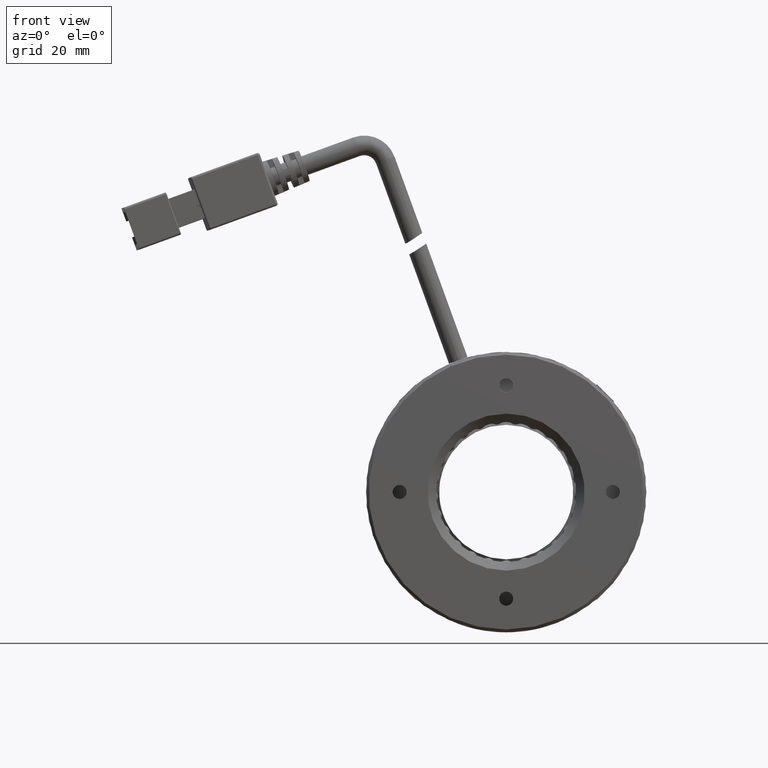
[diagram: clean part render]
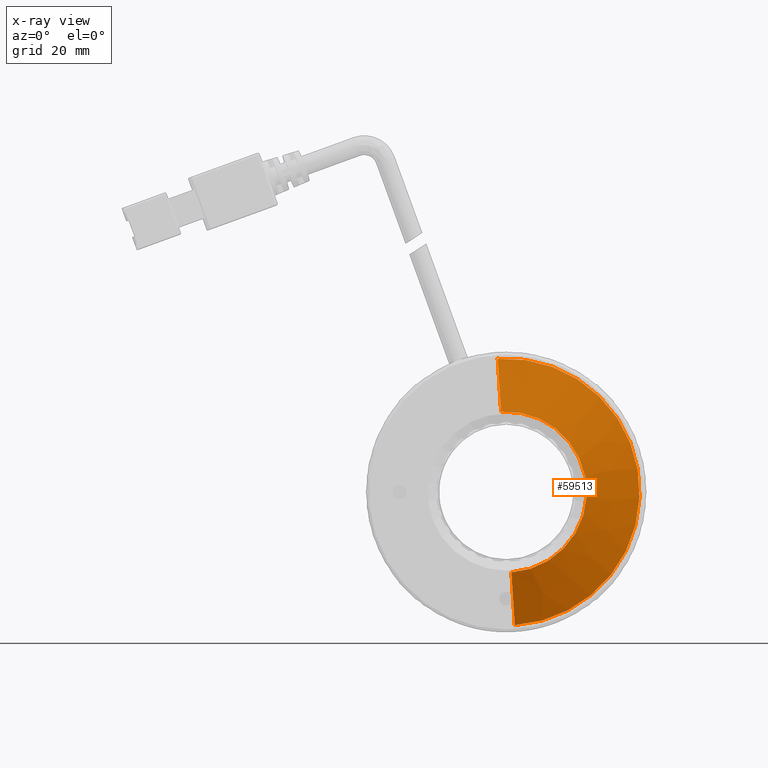
[diagram: x-ray — body ghosted, one internal face saturated and labeled with its STEP entity id]
A machine part, front view, then the same camera in x-ray: the body is ghosted and one INTERNAL B-rep face — a face not visible from any outside direction — is saturated and labeled: STEP entity #59513.
In plain terms, the highlighted conical surface has half-angle 60 deg.
Its self-contained STEP definition (entity closure, byte-faithful):
#538 = LINE ( 'NONE', #69081, #30985 ) ;
#2349 = CARTESIAN_POINT ( 'NONE',  ( -9.648541418031040700, -1.524333299256100100, 76.55310575562158700 ) ) ;
#2963 = VERTEX_POINT ( 'NONE', #35395 ) ;
#3243 = EDGE_CURVE ( 'NONE', #20007, #58362, #62787, .T. ) ;
#4230 = CARTESIAN_POINT ( 'NONE',  ( -11.17113522960111500, 3.929256539230119700, 100.3002384644813800 ) ) ;
#4704 = DIRECTION ( 'NONE',  ( -0.05541312642288864800, 0.5000000000000033300, 0.8642507653569290200 ) ) ;
#7352 = VERTEX_POINT ( 'NONE', #48992 ) ;
#8454 = DIRECTION ( 'NONE',  ( -0.06398556691378716500, 0.0000000000000000000, 0.9979508240523283800 ) ) ;
#10290 = DIRECTION ( 'NONE',  ( -0.0000000000000000000, -1.000000000000000000, -0.0000000000000000000 ) ) ;
#15906 = EDGE_CURVE ( 'NONE', #2963, #58362, #21108, .T. ) ;
#16244 = AXIS2_PLACEMENT_3D ( 'NONE', #46631, #10290, #52804 ) ;
#20007 = VERTEX_POINT ( 'NONE', #31030 ) ;
#21108 = LINE ( 'NONE', #71404, #67752 ) ;
#22117 = EDGE_CURVE ( 'NONE', #2963, #7352, #63096, .T. ) ;
#29313 = CARTESIAN_POINT ( 'NONE',  ( -9.648541418031040700, 3.929256539230119700, 76.55310575562158700 ) ) ;
#30985 = VECTOR ( 'NONE', #75204, 1000.000000000000000 ) ;
#31030 = CARTESIAN_POINT ( 'NONE',  ( -8.125947606460965000, 3.929256539230119700, 52.80597304676179200 ) ) ;
#32669 = ORIENTED_EDGE ( 'NONE', *, *, #63913, .T. ) ;
#35395 = CARTESIAN_POINT ( 'NONE',  ( -10.56673430324388400, -1.524333299256100100, 90.87370008077248000 ) ) ;
#35415 = ORIENTED_EDGE ( 'NONE', *, *, #3243, .T. ) ;
#38245 = CONICAL_SURFACE ( 'NONE', #58637, 23.79589468389936600, 1.047197551196593900 ) ;
#41371 = AXIS2_PLACEMENT_3D ( 'NONE', #2349, #44856, #8454 ) ;
#44810 = ORIENTED_EDGE ( 'NONE', *, *, #15906, .F. ) ;
#44856 = DIRECTION ( 'NONE',  ( 0.0000000000000000000, 1.000000000000000000, 0.0000000000000000000 ) ) ;
#45823 = FACE_OUTER_BOUND ( 'NONE', #74320, .T. ) ;
#46631 = CARTESIAN_POINT ( 'NONE',  ( -9.648541418031040700, 3.929256539230119700, 76.55310575562158700 ) ) ;
#47047 = DIRECTION ( 'NONE',  ( 0.0000000000000000000, 1.000000000000000000, 0.0000000000000000000 ) ) ;
#48992 = CARTESIAN_POINT ( 'NONE',  ( -8.730348532818192500, -1.524333299256100100, 62.23251143047070900 ) ) ;
#52804 = DIRECTION ( 'NONE',  ( -0.06398556691378719200, 0.0000000000000000000, 0.9979508240523284900 ) ) ;
#53754 = DIRECTION ( 'NONE',  ( -0.06398556691378719200, 0.0000000000000000000, 0.9979508240523284900 ) ) ;
#58362 = VERTEX_POINT ( 'NONE', #4230 ) ;
#58637 = AXIS2_PLACEMENT_3D ( 'NONE', #29313, #47047, #53754 ) ;
#59513 = ADVANCED_FACE ( 'NONE', ( #45823 ), #38245, .T. ) ;
#62787 = CIRCLE ( 'NONE', #16244, 23.79589468389936600 ) ;
#63096 = CIRCLE ( 'NONE', #41371, 14.34999999999997100 ) ;
#63913 = EDGE_CURVE ( 'NONE', #7352, #20007, #538, .T. ) ;
#67752 = VECTOR ( 'NONE', #4704, 1000.000000000000000 ) ;
#69081 = CARTESIAN_POINT ( 'NONE',  ( -8.125947606460961500, 3.929256539230119700, 52.80597304676179200 ) ) ;
#71404 = CARTESIAN_POINT ( 'NONE',  ( -11.17113522960111600, 3.929256539230119700, 100.3002384644813800 ) ) ;
#73980 = ORIENTED_EDGE ( 'NONE', *, *, #22117, .T. ) ;
#74320 = EDGE_LOOP ( 'NONE', ( #73980, #32669, #35415, #44810 ) ) ;
#75204 = DIRECTION ( 'NONE',  ( 0.05541312642288875200, 0.5000000000000033300, -0.8642507653569290200 ) ) ;